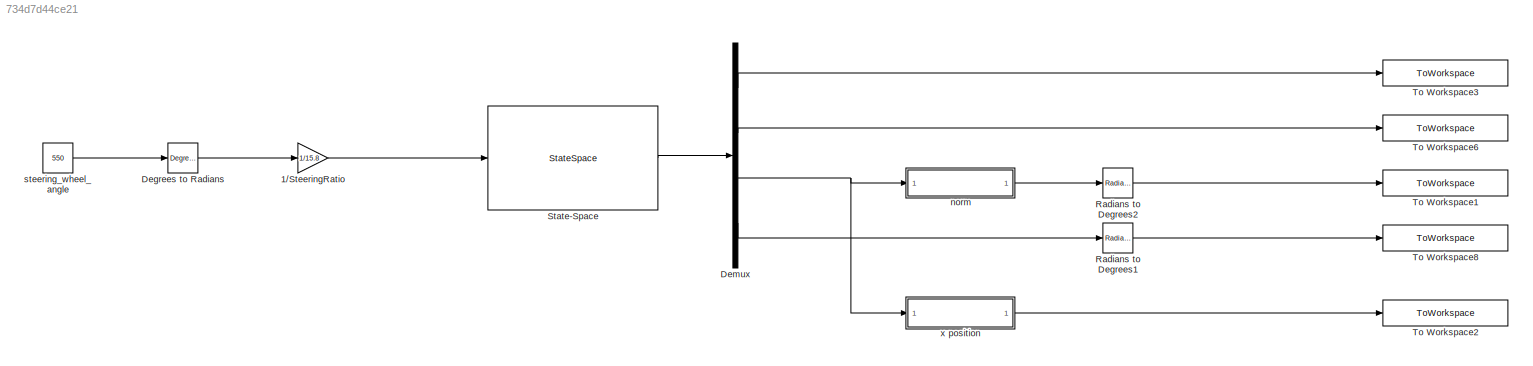
MODEL slx_734d7d44ce21
KIND model
CONFIG AbsTol = auto
CONFIG FixedStep = 0.001
CONFIG MaxStep = auto
CONFIG MinStep = auto
CONFIG PostLoadFcn = , if any(exist('dsrtsu_mdlpostloadfcn', 'file') == [2, 3, 6]), try dsrtsu_mdlpostloadfcn('Execute', bdroot); catch fprintf('Error in PostLoadFcn (dsrtsu_mdlpostloadfcn) for model "%s":\n %s\n', bdroot, lasterr); end, end, \n
CONFIG RelTol = 1e-3
CONFIG SampleTimeConstraint = Unconstrained
CONFIG Solver = FixedStepAuto
CONFIG SolverMode = Auto
CONFIG SolverName = FixedStepAuto
CONFIG StartTime = 0.0
CONFIG StopTime = 11
BLOCK [Gain] 1//SteeringRatio
  Gain = 1/15.8
  OutDataTypeStr = Inherit: Inherit via internal rule
  ParamDataTypeStr = Inherit: Inherit via internal rule
  SaturateOnIntegerOverflow = off
BLOCK [Reference] Degrees to Radians  REF=simulink_extras/Transformations/Degrees to
Radians
  Ports = [1, 1]
  SourceBlock = simulink_extras/Transformations/Degrees to\nRadians
  SourceType = DegreesToRadians
BLOCK [Demux] Demux
  DisplayOption = bar
  Ports = [1, 4]
BLOCK [Reference] Radians to Degrees1  REF=simulink_extras/Transformations/Radians
to Degrees
  Ports = [1, 1]
  SourceBlock = simulink_extras/Transformations/Radians\nto Degrees
  SourceType = RadiansToDegrees
BLOCK [Reference] Radians to Degrees2  REF=simulink_extras/Transformations/Radians
to Degrees
  Ports = [1, 1]
  SourceBlock = simulink_extras/Transformations/Radians\nto Degrees
  SourceType = RadiansToDegrees
BLOCK [StateSpace] State-Space
  A = A
  B = B
  C = C
  D = D
  Ports = [1, 1]
  X0 = 0
BLOCK [ToWorkspace] To Workspace1
  FixptAsFi = on
  MaxDataPoints = inf
  Ports = [1]
  SampleTime = -1
  Save2DSignal = 3-D array (concatenate along third dimension)
  SaveFormat = Timeseries
  VariableName = heading
BLOCK [ToWorkspace] To Workspace2
  FixptAsFi = on
  MaxDataPoints = inf
  Ports = [1]
  SampleTime = -1
  Save2DSignal = 3-D array (concatenate along third dimension)
  SaveFormat = Timeseries
  VariableName = x
BLOCK [ToWorkspace] To Workspace3
  FixptAsFi = on
  MaxDataPoints = inf
  Ports = [1]
  SampleTime = -1
  Save2DSignal = 3-D array (concatenate along third dimension)
  SaveFormat = Timeseries
  VariableName = y
BLOCK [ToWorkspace] To Workspace6
  FixptAsFi = on
  MaxDataPoints = inf
  Ports = [1]
  SampleTime = -1
  Save2DSignal = 3-D array (concatenate along third dimension)
  SaveFormat = Timeseries
  VariableName = vy
BLOCK [ToWorkspace] To Workspace8
  FixptAsFi = on
  MaxDataPoints = inf
  Ports = [1]
  SampleTime = -1
  Save2DSignal = 3-D array (concatenate along third dimension)
  SaveFormat = Timeseries
  VariableName = yaw_rate
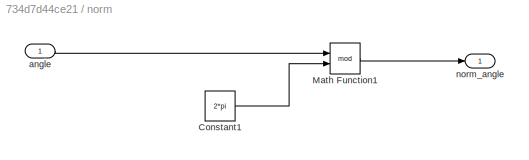
BLOCK [SubSystem] norm
  Ports = [1, 1]
  RequestExecContextInheritance = off
  Variant = off
BLOCK [Constant] norm/Constant1
  Value = 2*pi
BLOCK [Math] norm/Math Function1
  Operator = mod
  OutputSignalType = real
  Ports = [2, 1]
BLOCK [Inport] norm/angle
  IconDisplay = Port number
BLOCK [Outport] norm/norm_angle
  IconDisplay = Port number
BLOCK [Constant] steering_wheel_angle
  Value = 550
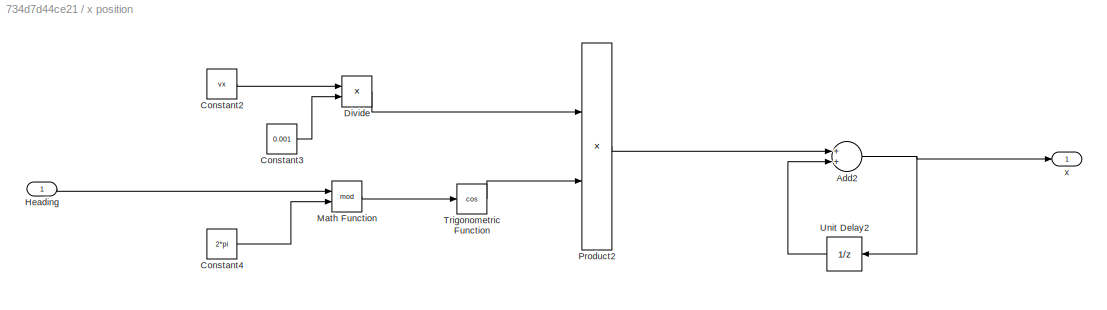
BLOCK [SubSystem] x position
  Ports = [1, 1]
  RequestExecContextInheritance = off
  Variant = off
BLOCK [Sum] x position/Add2
  InputSameDT = off
  OutDataTypeStr = Inherit: Inherit via internal rule
  Ports = [2, 1]
  SaturateOnIntegerOverflow = off
BLOCK [Constant] x position/Constant2
  Value = vx
BLOCK [Constant] x position/Constant3
  Value = 0.001
BLOCK [Constant] x position/Constant4
  Value = 2*pi
BLOCK [Product] x position/Divide
  InputSameDT = off
  Inputs = **
  OutDataTypeStr = Inherit: Inherit via internal rule
  Ports = [2, 1]
  RndMeth = Floor
  SaturateOnIntegerOverflow = off
BLOCK [Inport] x position/Heading
  IconDisplay = Port number
BLOCK [Math] x position/Math Function
  Operator = mod
  OutputSignalType = real
  Ports = [2, 1]
BLOCK [Product] x position/Product2
  InputSameDT = off
  OutDataTypeStr = Inherit: Inherit via internal rule
  Ports = [2, 1]
  RndMeth = Floor
  SaturateOnIntegerOverflow = off
BLOCK [Trigonometry] x position/Trigonometric Function
  Operator = cos
  Ports = [1, 1]
BLOCK [UnitDelay] x position/Unit Delay2
  InputProcessing = Elements as channels (sample based)
  SampleTime = -1
BLOCK [Outport] x position/x
  IconDisplay = Port number
LINE 1//SteeringRatio:1 -> State-Space:1
LINE Degrees to Radians:1 -> 1//SteeringRatio:1
LINE Demux:1 -> To Workspace3:1
LINE Demux:2 -> To Workspace6:1
NET Demux:3 -> norm:1, x position:1
LINE Demux:4 -> Radians to Degrees1:1
LINE Radians to Degrees1:1 -> To Workspace8:1
LINE Radians to Degrees2:1 -> To Workspace1:1
LINE State-Space:1 -> Demux:1
LINE norm/Constant1:1 -> norm/Math Function1:2
LINE norm/Math Function1:1 -> norm/norm_angle:1
LINE norm/angle:1 -> norm/Math Function1:1
LINE norm:1 -> Radians to Degrees2:1
LINE steering_wheel_angle:1 -> Degrees to Radians:1
NET x position/Add2:1 -> x position/Unit Delay2:1, x position/x:1
LINE x position/Constant2:1 -> x position/Divide:1
LINE x position/Constant3:1 -> x position/Divide:2
LINE x position/Constant4:1 -> x position/Math Function:2
LINE x position/Divide:1 -> x position/Product2:1
LINE x position/Heading:1 -> x position/Math Function:1
LINE x position/Math Function:1 -> x position/Trigonometric Function:1
LINE x position/Product2:1 -> x position/Add2:1
LINE x position/Trigonometric Function:1 -> x position/Product2:2
LINE x position/Unit Delay2:1 -> x position/Add2:2
LINE x position:1 -> To Workspace2:1
note: NET lines group one-source signal fan-out (src -> all destinations, sorted); 1:1 wires keep LINE
